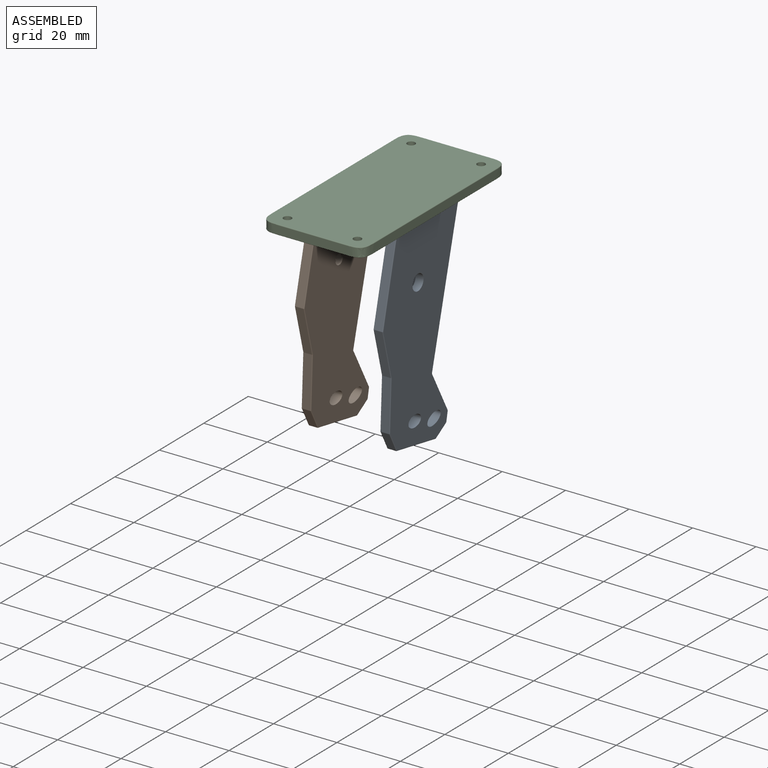
[diagram: assembled view]
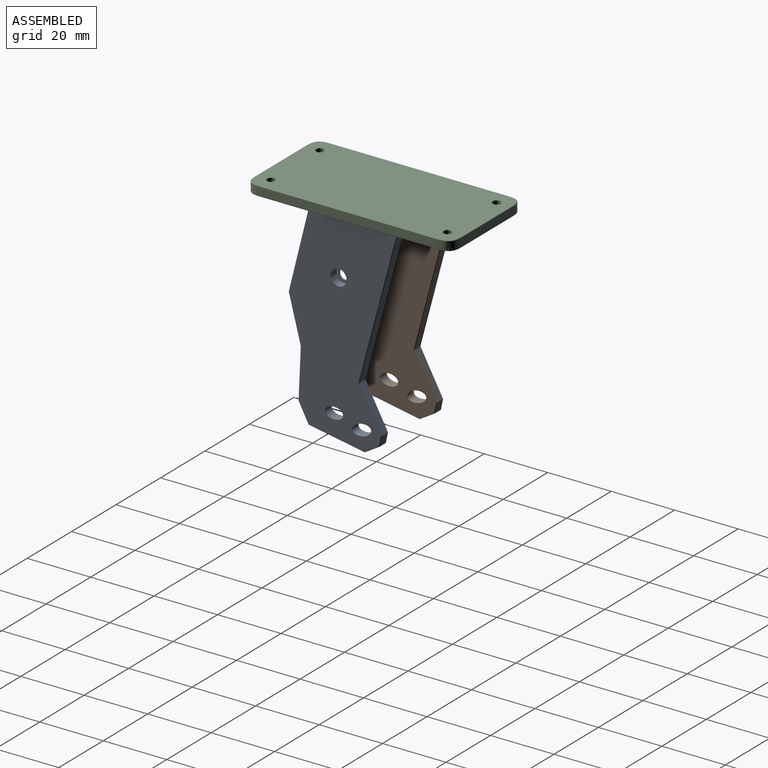
[diagram: assembled view, second angle]
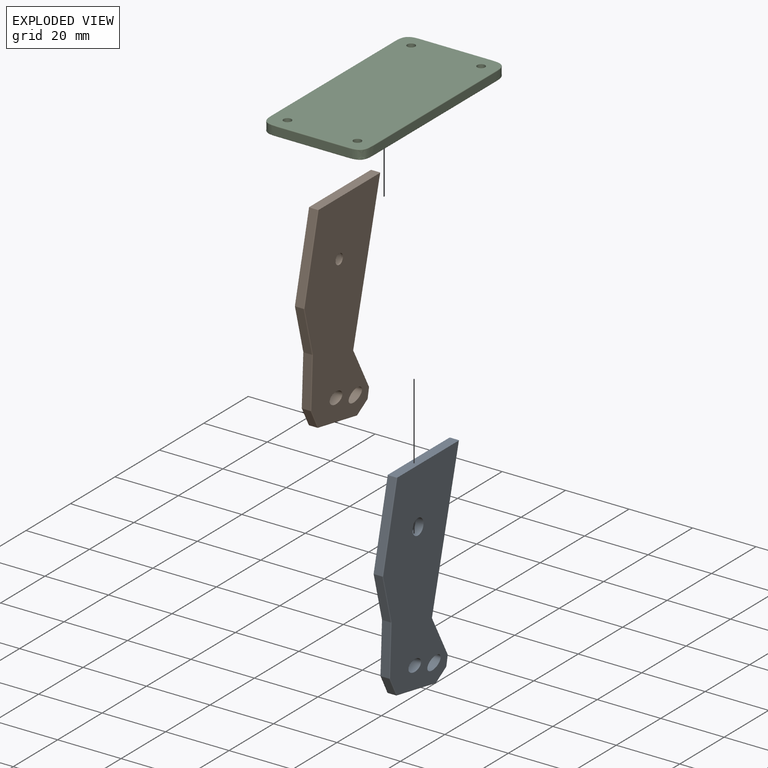
[diagram: exploded view]
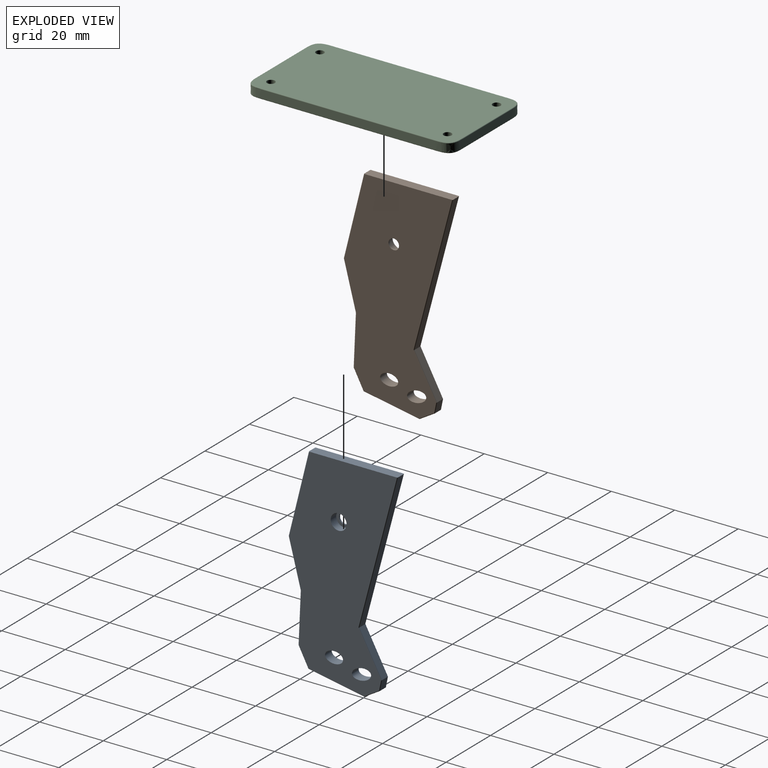
[diagram: exploded view, second angle]
ASSEMBLY  parts=3 mates=2
PART A: 59 faces, bbox 65.4x34x3 mm
  f0: plane 46.03x11.55mm, normal (-0.24,0.97,0), area 123.4mm2, adj f1,f14,f15,f16
  f1: plane 28x3mm, normal (1,-0.01,0), area 84mm2, adj f0,f2,f12,f13,f14,f16,f49,f52
  f2: plane 25.79x6.03mm, normal (0.23,-0.97,0), area 68.9mm2, adj f1,f49,f52,f55
  f3: plane 14.37x3.95mm, normal (-0.27,-0.96,0), area 38.7mm2, adj f45,f50,f51,f55
  f4: plane 15.68x2.6mm, normal (0.03,-1,0), area 40.8mm2, adj f40,f44,f45,f46
  f5: plane 5.82x3.16mm, normal (-0.48,-0.88,0), area 17.2mm2, adj f35,f39,f40,f41
  f6: plane 17.51x2.95mm, normal (-0.99,-0.17,0), area 46.2mm2, adj f30,f34,f35,f36
  f7: plane 4.62x2.86mm, normal (-0.85,0.53,0), area 14.1mm2, adj f25,f29,f30,f31
  f8: plane 3.08x2.6mm, normal (-0.19,0.98,0), area 8.2mm2, adj f20,f24,f25,f26
  f9: extruded ~5.68x3.62mm, area 44.4mm2, adj f12,f13
  f10: extruded ~6.01x3.72mm, area 46.3mm2, adj f12,f13
  f11: plane 12.91x7.23mm, normal (0.49,0.87,0), area 38.5mm2, adj f15,f19,f20,f21
  f12: plane 65.12x33.62mm, normal (0,0,1), area 1496.1mm2, adj f1,f9,f10,f14,f17,f19,f24,f29
  f13: plane 65.12x33.62mm, normal (0,0,-1), area 1485mm2, adj f1,f9,f10,f16,f18,f21,f26,f31
  f14: cylinder r=0.2mm len=46.08mm, axis (-0.97,-0.24,0), area 14.9mm2, adj f0,f1,f12,f17
  f15: cylinder r=0.2mm len=2.6mm, axis (0,0,1), area 0.4mm2, adj f0,f11,f17,f18
  f16: cylinder r=0.2mm len=46.08mm, axis (0.97,0.24,0), area 14.9mm2, adj f0,f1,f13,f18
  f17: torus R=0.4mm, axis (0,0,1), area 0.1mm2, adj f12,f14,f15,f19
  f18: torus R=0.4mm, axis (0,0,1), area 0.1mm2, adj f13,f15,f16,f21
  f19: cylinder r=0.2mm len=13.01mm, axis (-0.87,0.49,0), area 4.6mm2, adj f11,f12,f17,f22
  f20: cylinder r=0.2mm len=2.6mm, axis (0,0,-1), area 0.4mm2, adj f8,f11,f22,f23
  f21: cylinder r=0.2mm len=13.01mm, axis (0.87,-0.49,0), area 4.6mm2, adj f11,f13,f18,f23
  f22: sphere r=0.2mm, area 0mm2, adj f19,f20,f24
  f23: sphere r=0.2mm, area 0mm2, adj f20,f21,f26
  f24: cylinder r=0.2mm len=3.12mm, axis (-0.98,-0.19,0), area 1mm2, adj f8,f12,f22,f27
  f25: cylinder r=0.2mm len=2.6mm, axis (0,0,-1), area 0.4mm2, adj f7,f8,f27,f28
  f26: cylinder r=0.2mm len=3.12mm, axis (0.98,0.19,0), area 1mm2, adj f8,f13,f23,f28
  f27: sphere r=0.2mm, area 0mm2, adj f24,f25,f29
  f28: sphere r=0.2mm, area 0mm2, adj f25,f26,f31
  f29: cylinder r=0.2mm len=4.73mm, axis (-0.53,-0.85,0), area 1.7mm2, adj f7,f12,f27,f32
  f30: cylinder r=0.2mm len=2.6mm, axis (0,0,-1), area 0.4mm2, adj f6,f7,f32,f33
  f31: cylinder r=0.2mm len=4.73mm, axis (0.53,0.85,0), area 1.7mm2, adj f7,f13,f28,f33
  f32: sphere r=0.2mm, area 0mm2, adj f29,f30,f34
  f33: sphere r=0.2mm, area 0mm2, adj f30,f31,f36
  f34: cylinder r=0.2mm len=17.54mm, axis (0.17,-0.99,0), area 5.6mm2, adj f6,f12,f32,f37
  f35: cylinder r=0.2mm len=2.6mm, axis (0,0,-1), area 0.5mm2, adj f5,f6,f37,f38
  f36: cylinder r=0.2mm len=17.54mm, axis (-0.17,0.99,0), area 5.6mm2, adj f6,f13,f33,f38
  f37: sphere r=0.2mm, area 0mm2, adj f34,f35,f39
  f38: sphere r=0.2mm, area 0mm2, adj f35,f36,f41
  f39: cylinder r=0.2mm len=5.92mm, axis (0.88,-0.48,0), area 2.1mm2, adj f5,f12,f37,f42
  f40: cylinder r=0.2mm len=2.6mm, axis (0,0,-1), area 0.3mm2, adj f4,f5,f42,f43
  f41: cylinder r=0.2mm len=5.92mm, axis (-0.88,0.48,0), area 2.1mm2, adj f5,f13,f38,f43
  f42: sphere r=0.2mm, area 0mm2, adj f39,f40,f44
  f43: sphere r=0.2mm, area 0mm2, adj f40,f41,f46
  f44: cylinder r=0.2mm len=15.68mm, axis (1,0.03,0), area 4.9mm2, adj f4,f12,f42,f47
  f45: cylinder r=0.2mm len=2.6mm, axis (0,0,-1), area 0.2mm2, adj f3,f4,f47,f48
  f46: cylinder r=0.2mm len=15.68mm, axis (-1,-0.03,0), area 4.9mm2, adj f4,f13,f43,f48
  f47: torus R=0.4mm, axis (0,0,1), area 0mm2, adj f12,f44,f45,f50
  f48: torus R=0.4mm, axis (0,0,1), area 0mm2, adj f13,f45,f46,f51
  f49: cylinder r=0.2mm len=25.88mm, axis (0.97,0.23,0), area 8.3mm2, adj f1,f2,f12,f53
  f50: cylinder r=0.2mm len=14.42mm, axis (0.96,-0.27,0), area 4.7mm2, adj f3,f12,f47,f53
  f51: cylinder r=0.2mm len=14.42mm, axis (-0.96,0.27,0), area 4.7mm2, adj f3,f13,f48,f54
  f52: cylinder r=0.2mm len=25.88mm, axis (-0.97,-0.23,0), area 8.3mm2, adj f1,f2,f13,f54
  f53: sphere r=0.2mm, area 0mm2, adj f49,f50,f55
  f54: sphere r=0.2mm, area 0mm2, adj f51,f52,f55
  f55: cylinder r=0.2mm len=2.6mm, axis (0,0,-1), area 0.3mm2, adj f2,f3,f53,f54
  f56: cylinder r=1.65mm len=3.3mm, axis (0,0,-1), area 5.2mm2, adj f12,f57
  f57: plane 5x5mm, normal (0,0,-1), area 11.1mm2, adj f56,f58
  f58: cylinder r=2.5mm len=5mm, axis (0,0,-1), area 39.3mm2, adj f13,f57
PART B: 59 faces, bbox 65.4x34x3 mm
  f0: plane 46.03x11.55mm, normal (0.24,0.97,0), area 123.4mm2, adj f1,f14,f15,f16
  f1: plane 28x3mm, normal (-1,-0.01,0), area 84mm2, adj f0,f2,f12,f13,f14,f16,f49,f52
  f2: plane 25.79x6.03mm, normal (-0.23,-0.97,0), area 68.9mm2, adj f1,f49,f52,f55
  f3: plane 14.37x3.95mm, normal (0.27,-0.96,0), area 38.7mm2, adj f45,f50,f51,f55
  f4: plane 15.68x2.6mm, normal (-0.03,-1,0), area 40.8mm2, adj f40,f44,f45,f46
  f5: plane 5.82x3.16mm, normal (0.48,-0.88,0), area 17.2mm2, adj f35,f39,f40,f41
  f6: plane 17.51x2.95mm, normal (0.99,-0.17,0), area 46.2mm2, adj f30,f34,f35,f36
  f7: plane 4.62x2.86mm, normal (0.85,0.53,0), area 14.1mm2, adj f25,f29,f30,f31
  f8: plane 3.08x2.6mm, normal (0.19,0.98,0), area 8.2mm2, adj f20,f24,f25,f26
  f9: extruded ~5.68x3.62mm, area 44.4mm2, adj f12,f13
  f10: extruded ~6.01x3.72mm, area 46.3mm2, adj f12,f13
  f11: plane 12.91x7.23mm, normal (-0.49,0.87,0), area 38.5mm2, adj f15,f19,f20,f21
  f12: plane 65.12x33.62mm, normal (0,0,1), area 1496.1mm2, adj f1,f9,f10,f14,f17,f19,f24,f29
  f13: plane 65.12x33.62mm, normal (0,0,-1), area 1485mm2, adj f1,f9,f10,f16,f18,f21,f26,f31
  f14: cylinder r=0.2mm len=46.08mm, axis (0.97,-0.24,0), area 14.9mm2, adj f0,f1,f12,f17
  f15: cylinder r=0.2mm len=2.6mm, axis (0,0,1), area 0.4mm2, adj f0,f11,f17,f18
  f16: cylinder r=0.2mm len=46.08mm, axis (-0.97,0.24,0), area 14.9mm2, adj f0,f1,f13,f18
  f17: torus R=0.4mm, axis (0,0,1), area 0.1mm2, adj f12,f14,f15,f19
  f18: torus R=0.4mm, axis (0,0,1), area 0.1mm2, adj f13,f15,f16,f21
  f19: cylinder r=0.2mm len=13.01mm, axis (0.87,0.49,0), area 4.6mm2, adj f11,f12,f17,f22
  f20: cylinder r=0.2mm len=2.6mm, axis (0,0,-1), area 0.4mm2, adj f8,f11,f22,f23
  f21: cylinder r=0.2mm len=13.01mm, axis (-0.87,-0.49,0), area 4.6mm2, adj f11,f13,f18,f23
  f22: sphere r=0.2mm, area 0mm2, adj f19,f20,f24
  f23: sphere r=0.2mm, area 0mm2, adj f20,f21,f26
  f24: cylinder r=0.2mm len=3.12mm, axis (0.98,-0.19,0), area 1mm2, adj f8,f12,f22,f27
  f25: cylinder r=0.2mm len=2.6mm, axis (0,0,-1), area 0.4mm2, adj f7,f8,f27,f28
  f26: cylinder r=0.2mm len=3.12mm, axis (-0.98,0.19,0), area 1mm2, adj f8,f13,f23,f28
  f27: sphere r=0.2mm, area 0mm2, adj f24,f25,f29
  f28: sphere r=0.2mm, area 0mm2, adj f25,f26,f31
  f29: cylinder r=0.2mm len=4.73mm, axis (0.53,-0.85,0), area 1.7mm2, adj f7,f12,f27,f32
  f30: cylinder r=0.2mm len=2.6mm, axis (0,0,-1), area 0.4mm2, adj f6,f7,f32,f33
  f31: cylinder r=0.2mm len=4.73mm, axis (-0.53,0.85,0), area 1.7mm2, adj f7,f13,f28,f33
  f32: sphere r=0.2mm, area 0mm2, adj f29,f30,f34
  f33: sphere r=0.2mm, area 0mm2, adj f30,f31,f36
  f34: cylinder r=0.2mm len=17.54mm, axis (-0.17,-0.99,0), area 5.6mm2, adj f6,f12,f32,f37
  f35: cylinder r=0.2mm len=2.6mm, axis (0,0,-1), area 0.5mm2, adj f5,f6,f37,f38
  f36: cylinder r=0.2mm len=17.54mm, axis (0.17,0.99,0), area 5.6mm2, adj f6,f13,f33,f38
  f37: sphere r=0.2mm, area 0mm2, adj f34,f35,f39
  f38: sphere r=0.2mm, area 0mm2, adj f35,f36,f41
  f39: cylinder r=0.2mm len=5.92mm, axis (-0.88,-0.48,0), area 2.1mm2, adj f5,f12,f37,f42
  f40: cylinder r=0.2mm len=2.6mm, axis (0,0,-1), area 0.3mm2, adj f4,f5,f42,f43
  f41: cylinder r=0.2mm len=5.92mm, axis (0.88,0.48,0), area 2.1mm2, adj f5,f13,f38,f43
  f42: sphere r=0.2mm, area 0mm2, adj f39,f40,f44
  f43: sphere r=0.2mm, area 0mm2, adj f40,f41,f46
  f44: cylinder r=0.2mm len=15.68mm, axis (-1,0.03,0), area 4.9mm2, adj f4,f12,f42,f47
  f45: cylinder r=0.2mm len=2.6mm, axis (0,0,-1), area 0.2mm2, adj f3,f4,f47,f48
  f46: cylinder r=0.2mm len=15.68mm, axis (1,-0.03,0), area 4.9mm2, adj f4,f13,f43,f48
  f47: torus R=0.4mm, axis (0,0,1), area 0mm2, adj f12,f44,f45,f50
  f48: torus R=0.4mm, axis (0,0,1), area 0mm2, adj f13,f45,f46,f51
  f49: cylinder r=0.2mm len=25.88mm, axis (-0.97,0.23,0), area 8.3mm2, adj f1,f2,f12,f53
  f50: cylinder r=0.2mm len=14.42mm, axis (-0.96,-0.27,0), area 4.7mm2, adj f3,f12,f47,f53
  f51: cylinder r=0.2mm len=14.42mm, axis (0.96,0.27,0), area 4.7mm2, adj f3,f13,f48,f54
  f52: cylinder r=0.2mm len=25.88mm, axis (0.97,-0.23,0), area 8.3mm2, adj f1,f2,f13,f54
  f53: sphere r=0.2mm, area 0mm2, adj f49,f50,f55
  f54: sphere r=0.2mm, area 0mm2, adj f51,f52,f55
  f55: cylinder r=0.2mm len=2.6mm, axis (0,0,-1), area 0.3mm2, adj f2,f3,f53,f54
  f56: cylinder r=1.65mm len=3.3mm, axis (0,0,-1), area 5.2mm2, adj f12,f57
  f57: plane 5x5mm, normal (0,0,-1), area 11.1mm2, adj f56,f58
  f58: cylinder r=2.5mm len=5mm, axis (0,0,-1), area 39.3mm2, adj f13,f57
PART C: 35 faces, bbox 32x65x3.3 mm
  f0: plane 55x2.6mm, normal (1,0,0), area 143mm2, adj f11,f13,f16,f23
  f1: plane 22x2.6mm, normal (0,1,0), area 57.2mm2, adj f12,f13,f15,f24
  f2: plane 55x2.6mm, normal (-1,0,0), area 143mm2, adj f10,f12,f19,f28
  f3: plane 22x2.6mm, normal (0,-1,0), area 57.2mm2, adj f10,f11,f20,f27
  f4: cylinder r=1.25mm len=3mm, axis (0,0,-1), area 23.6mm2, adj f8,f9
  f5: cylinder r=1.25mm len=3mm, axis (0,0,-1), area 23.6mm2, adj f8,f9
  f6: cylinder r=1.25mm len=3mm, axis (0,0,-1), area 23.6mm2, adj f8,f9
  f7: cylinder r=1.25mm len=3mm, axis (0,0,-1), area 23.6mm2, adj f8,f9
  f8: plane 64.6x31.6mm, normal (0,0,1), area 2011.7mm2, adj f4,f5,f6,f7,f14,f15,f16,f17
  f9: plane 64.6x31.6mm, normal (0,0,-1), area 1357.7mm2, adj f4,f5,f6,f7,f22,f23,f24,f25
  f10: bspline ~5x5mm, area 22mm2, adj f2,f3,f21,f29
  f11: bspline ~5x5mm, area 22mm2, adj f0,f3,f18,f25
  f12: bspline ~5x5mm, area 22mm2, adj f1,f2,f17,f26
  f13: bspline ~5x5mm, area 22mm2, adj f0,f1,f14,f22
  f14: bspline ~6.72x6.72mm, area 2.6mm2, adj f8,f13,f15,f16
  f15: cylinder r=0.2mm len=22mm, axis (1,0,0), area 6.9mm2, adj f1,f8,f14,f17
  f16: cylinder r=0.2mm len=55mm, axis (0,-1,0), area 17.3mm2, adj f0,f8,f14,f18
  f17: bspline ~6.72x6.72mm, area 2.6mm2, adj f8,f12,f15,f19
  f18: bspline ~6.72x6.72mm, area 2.6mm2, adj f8,f11,f16,f20
  f19: cylinder r=0.2mm len=55mm, axis (0,1,0), area 17.3mm2, adj f2,f8,f17,f21
  f20: cylinder r=0.2mm len=22mm, axis (-1,0,0), area 6.9mm2, adj f3,f8,f18,f21
  f21: bspline ~6.72x6.72mm, area 2.6mm2, adj f8,f10,f19,f20
  f22: bspline ~6.72x6.72mm, area 2.6mm2, adj f9,f13,f23,f24
  f23: cylinder r=0.2mm len=55mm, axis (0,1,0), area 17.3mm2, adj f0,f9,f22,f25
  f24: cylinder r=0.2mm len=22mm, axis (-1,0,0), area 6.9mm2, adj f1,f9,f22,f26
  f25: bspline ~6.72x6.72mm, area 2.6mm2, adj f9,f11,f23,f27
  f26: bspline ~6.72x6.72mm, area 2.6mm2, adj f9,f12,f24,f28
  f27: cylinder r=0.2mm len=22mm, axis (1,0,0), area 6.9mm2, adj f3,f9,f25,f29
  f28: cylinder r=0.2mm len=55mm, axis (0,-1,0), area 17.3mm2, adj f2,f9,f26,f29
  f29: bspline ~6.72x6.72mm, area 2.6mm2, adj f9,f10,f27,f28
  f30: plane 21.8x0mm, normal (0,1,0), area 0mm2, adj f9,f31,f33,f34
  f31: plane 30x0mm, normal (-1,0,0), area 0mm2, adj f9,f30,f32,f34
  f32: plane 21.8x0mm, normal (0,-1,0), area 0mm2, adj f9,f31,f33,f34
  f33: plane 30x0mm, normal (1,0,0), area 0mm2, adj f9,f30,f32,f34
  f34: plane 30x21.8mm, normal (0,0,-1), area 654mm2, adj f30,f31,f32,f33
PLACE A rot(axis=(-0.01,-1,0.01),90deg) t=(-17.98,29.73,3.07)mm
PLACE B rot(axis=(-0.01,1,-0.01),90deg) t=(-45.78,29.73,3.07)mm
PLACE C t=(-31.88,-1.86,-12.88)mm
MATE fastened B.f1 <-> C.f34  axis (0,0,1) through (-42.78,-1.86,-12.88)mm
MATE fastened A.f1 <-> C.f34  axis (0,0,1) through (-20.98,-1.86,-12.88)mm
